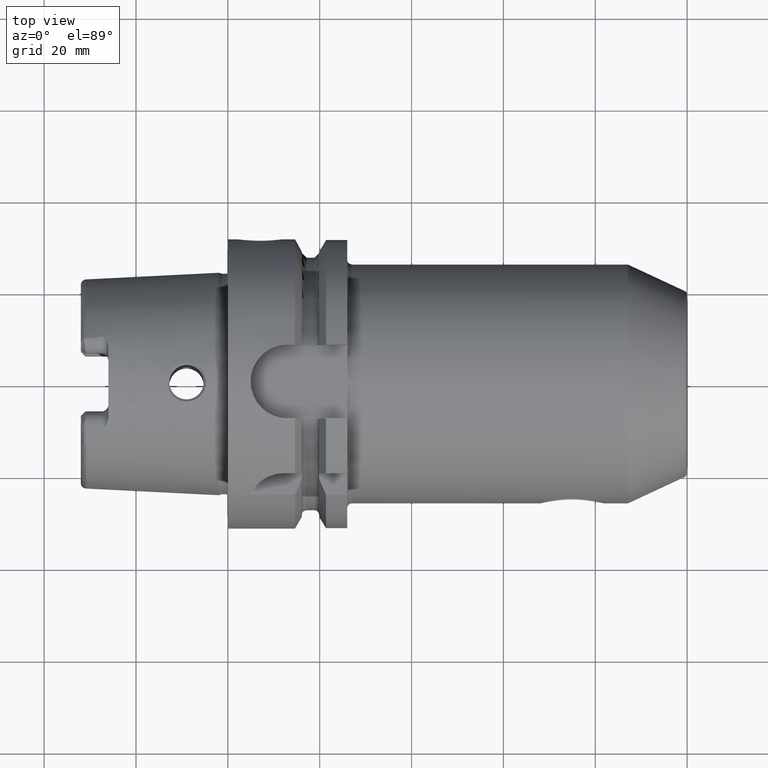
[diagram: clean part render]
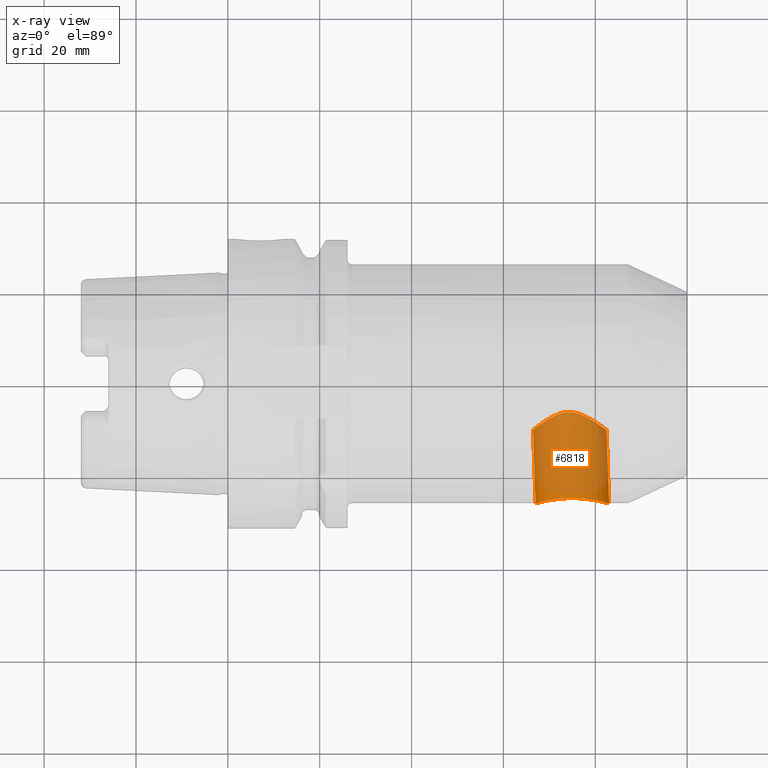
[diagram: x-ray — body ghosted, one internal face saturated and labeled with its STEP entity id]
A machine part, top view, then the same camera in x-ray: the body is ghosted and one INTERNAL B-rep face — a face not visible from any outside direction — is saturated and labeled: STEP entity #6818.
In plain terms, the highlighted cylindrical surface (partial cylindrical patch) has radius 8 mm, axis along (0.0349, -0.9994, 0).
Its self-contained STEP definition (entity closure, byte-faithful):
#6665=CARTESIAN_POINT('',(8.300487635439E1,-2.6E1,0.E0));
#6666=CARTESIAN_POINT('',(8.300487635439E1,-2.6E1,-3.134377064709E-1));
#6667=CARTESIAN_POINT('',(8.296764414114E1,-2.598863552358E1,
-9.423019589545E-1));
#6668=CARTESIAN_POINT('',(8.279793648940E1,-2.593749012091E1,
-1.880027742949E0));
#6669=CARTESIAN_POINT('',(8.251645683020E1,-2.585480115681E1,
-2.793463709941E0));
#6670=CARTESIAN_POINT('',(8.212117456865E1,-2.574328964817E1,
-3.679163770350E0));
#6671=CARTESIAN_POINT('',(8.161883396790E1,-2.560940548452E1,
-4.514872004793E0));
#6672=CARTESIAN_POINT('',(8.100841087030E1,-2.545881907690E1,
-5.295274335862E0));
#6673=CARTESIAN_POINT('',(8.030818525913E1,-2.530271173033E1,
-5.993678363555E0));
#6674=CARTESIAN_POINT('',(7.952221573891E1,-2.514920018180E1,
-6.605238645592E0));
#6675=CARTESIAN_POINT('',(7.867742002850E1,-2.501032473086E1,
-7.110309049818E0));
#6676=CARTESIAN_POINT('',(7.778075886918E1,-2.489312480985E1,
-7.508264403611E0));
#6677=CARTESIAN_POINT('',(7.685703947991E1,-2.480549548604E1,
-7.791363890342E0));
#6678=CARTESIAN_POINT('',(7.591225204729E1,-2.475102776232E1,
-7.961824356497E0));
#6679=CARTESIAN_POINT('',(7.496221594822E1,-2.473256927013E1,
-8.018678170743E0));
#6680=CARTESIAN_POINT('',(7.401509265536E1,-2.475050319674E1,
-7.963445899123E0));
#6681=CARTESIAN_POINT('',(7.307758712106E1,-2.480417611048E1,
-7.795528771880E0));
#6682=CARTESIAN_POINT('',(7.216547756757E1,-2.489052883294E1,
-7.516782423832E0));
#6683=CARTESIAN_POINT('',(7.128212174522E1,-2.500612375864E1,
-7.124912894907E0));
#6684=CARTESIAN_POINT('',(7.045119413346E1,-2.514327719337E1,
-6.627513781996E0));
#6685=CARTESIAN_POINT('',(6.967712741170E1,-2.529551487678E1,
-6.023708131314E0));
#6686=CARTESIAN_POINT('',(6.898574595205E1,-2.545118778159E1,
-5.331594061869E0));
#6687=CARTESIAN_POINT('',(6.838073022789E1,-2.560236649778E1,
-4.554555210067E0));
#6688=CARTESIAN_POINT('',(6.788052034071E1,-2.573777291089E1,
-3.717809129443E0));
#6689=CARTESIAN_POINT('',(6.748550310377E1,-2.585122211764E1,
-2.827179177778E0));
#6690=CARTESIAN_POINT('',(6.720314908823E1,-2.593582104698E1,
-1.904637370905E0));
#6691=CARTESIAN_POINT('',(6.703264210984E1,-2.598829784558E1,
-9.556332076955E-1));
#6692=CARTESIAN_POINT('',(6.699512364561E1,-2.6E1,-3.180236777833E-1));
#6693=CARTESIAN_POINT('',(6.699512364561E1,-2.6E1,0.E0));
#6695=CARTESIAN_POINT('',(6.643639133374E1,-1.E1,0.E0));
#6696=CARTESIAN_POINT('',(6.643639133374E1,-1.E1,-2.752287327221E-1));
#6697=CARTESIAN_POINT('',(6.646401824554E1,-9.977253671007E0,
-8.286926867121E-1));
#6698=CARTESIAN_POINT('',(6.659087237065E1,-9.873233086684E0,
-1.658944827606E0));
#6699=CARTESIAN_POINT('',(6.680379057218E1,-9.700080122321E0,
-2.479350452705E0));
#6700=CARTESIAN_POINT('',(6.711168455170E1,-9.453064865506E0,
-3.299682017084E0));
#6701=CARTESIAN_POINT('',(6.752017883901E1,-9.131993152758E0,
-4.106247819993E0));
#6702=CARTESIAN_POINT('',(6.803820421740E1,-8.736896732273E0,
-4.891331169966E0));
#6703=CARTESIAN_POINT('',(6.866875168321E1,-8.276877212185E0,
-5.633740663763E0));
#6704=CARTESIAN_POINT('',(6.939474417801E1,-7.780881277089E0,
-6.298043147725E0));
#6705=CARTESIAN_POINT('',(7.017772888824E1,-7.294695348657E0,
-6.851239685337E0));
#6706=CARTESIAN_POINT('',(7.097855787265E1,-6.859929756929E0,
-7.282889822434E0));
#6707=CARTESIAN_POINT('',(7.177929364374E1,-6.501065230181E0,
-7.602005964464E0));
#6708=CARTESIAN_POINT('',(7.254031270283E1,-6.241467068323E0,
-7.814553378676E0));
#6709=CARTESIAN_POINT('',(7.326607188242E1,-6.075416299188E0,
-7.943327088317E0));
#6710=CARTESIAN_POINT('',(7.396398302940E1,-5.996393354974E0,
-8.002715775184E0));
#6711=CARTESIAN_POINT('',(7.464714985305E1,-5.996827828570E0,
-8.002392192309E0));
#6712=CARTESIAN_POINT('',(7.535313104383E1,-6.077075189348E0,
-7.942070377625E0));
#6713=CARTESIAN_POINT('',(7.609924770553E1,-6.246506137083E0,
-7.810604118129E0));
#6714=CARTESIAN_POINT('',(7.689593472439E1,-6.514793197489E0,
-7.590527447589E0));
#6715=CARTESIAN_POINT('',(7.774195682128E1,-6.887169383039E0,
-7.257679457003E0));
#6716=CARTESIAN_POINT('',(7.858771439637E1,-7.335008380637E0,
-6.808766552114E0));
#6717=CARTESIAN_POINT('',(7.941031923212E1,-7.829548290647E0,
-6.238110869031E0));
#6718=CARTESIAN_POINT('',(8.016681337231E1,-8.326608188068E0,
-5.560331708560E0));
#6719=CARTESIAN_POINT('',(8.081740320529E1,-8.780615797443E0,
-4.812203287778E0));
#6720=CARTESIAN_POINT('',(8.134719804757E1,-9.165544395237E0,
-4.030102825582E0));
#6721=CARTESIAN_POINT('',(8.176312536317E1,-9.476074226049E0,
-3.231780313258E0));
#6722=CARTESIAN_POINT('',(8.207495745143E1,-9.713239977296E0,
-2.425285581387E0));
#6723=CARTESIAN_POINT('',(8.229014972152E1,-9.878918006191E0,
-1.621606123800E0));
#6724=CARTESIAN_POINT('',(8.241824011283E1,-9.978275895135E0,
-8.098587940310E-1));
#6725=CARTESIAN_POINT('',(8.244614404252E1,-1.E1,-2.689506536939E-1));
#6726=CARTESIAN_POINT('',(8.244614404252E1,-1.E1,0.E0));
#6758=DIRECTION('',(-3.489949670250E-2,9.993908270191E-1,0.E0));
#6759=VECTOR('',#6758,1.600975270878E1);
#6760=CARTESIAN_POINT('',(8.300487635439E1,-2.6E1,0.E0));
#6761=LINE('',#6760,#6759);
#6795=DIRECTION('',(-3.489949670250E-2,9.993908270191E-1,0.E0));
#6796=VECTOR('',#6795,1.600975270878E1);
#6797=CARTESIAN_POINT('',(6.699512364561E1,-2.6E1,0.E0));
#6798=LINE('',#6797,#6796);
#6799=VERTEX_POINT('',#6693);
#6800=VERTEX_POINT('',#6665);
#6801=VERTEX_POINT('',#6726);
#6802=VERTEX_POINT('',#6695);
#6803=CARTESIAN_POINT('',(7.389137122622E1,5.746974362625E0,0.E0));
#6804=DIRECTION('',(3.489949670250E-2,-9.993908270191E-1,0.E0));
#6805=DIRECTION('',(-9.993908270191E-1,-3.489949670250E-2,0.E0));
#6806=AXIS2_PLACEMENT_3D('',#6803,#6804,#6805);
#6807=CYLINDRICAL_SURFACE('',#6806,8.E0);
#6809=ORIENTED_EDGE('',*,*,#6808,.T.);
#6811=ORIENTED_EDGE('',*,*,#6810,.T.);
#6813=ORIENTED_EDGE('',*,*,#6812,.T.);
#6815=ORIENTED_EDGE('',*,*,#6814,.F.);
#6816=EDGE_LOOP('',(#6809,#6811,#6813,#6815));
#6817=FACE_OUTER_BOUND('',#6816,.F.);
#6818=ADVANCED_FACE('',(#6817),#6807,.F.);
#6694=B_SPLINE_CURVE_WITH_KNOTS('',3,(#6665,#6666,#6667,#6668,#6669,#6670,#6671,
#6672,#6673,#6674,#6675,#6676,#6677,#6678,#6679,#6680,#6681,#6682,#6683,#6684,
#6685,#6686,#6687,#6688,#6689,#6690,#6691,#6692,#6693),.UNSPECIFIED.,.F.,.F.,(4,
1,1,1,1,1,1,1,1,1,1,1,1,1,1,1,1,1,1,1,1,1,1,1,1,1,4),(0.E0,3.846153846154E-2,
7.692307692308E-2,1.153846153846E-1,1.538461538462E-1,1.923076923077E-1,
2.307692307692E-1,2.692307692308E-1,3.076923076923E-1,3.461538461538E-1,
3.846153846154E-1,4.230769230769E-1,4.615384615385E-1,5.E-1,5.384615384615E-1,
5.769230769231E-1,6.153846153846E-1,6.538461538462E-1,6.923076923077E-1,
7.307692307692E-1,7.692307692308E-1,8.076923076923E-1,8.461538461538E-1,
8.846153846154E-1,9.230769230769E-1,9.615384615385E-1,1.E0),.UNSPECIFIED.);
#6727=B_SPLINE_CURVE_WITH_KNOTS('',3,(#6695,#6696,#6697,#6698,#6699,#6700,#6701,
#6702,#6703,#6704,#6705,#6706,#6707,#6708,#6709,#6710,#6711,#6712,#6713,#6714,
#6715,#6716,#6717,#6718,#6719,#6720,#6721,#6722,#6723,#6724,#6725,#6726),
.UNSPECIFIED.,.F.,.F.,(4,1,1,1,1,1,1,1,1,1,1,1,1,1,1,1,1,1,1,1,1,1,1,1,1,1,1,1,
1,4),(0.E0,3.448275862069E-2,6.896551724138E-2,1.034482758621E-1,
1.379310344828E-1,1.724137931034E-1,2.068965517241E-1,2.413793103448E-1,
2.758620689655E-1,3.103448275862E-1,3.448275862069E-1,3.793103448276E-1,
4.137931034483E-1,4.482758620690E-1,4.827586206897E-1,5.172413793103E-1,
5.517241379310E-1,5.862068965517E-1,6.206896551724E-1,6.551724137931E-1,
6.896551724138E-1,7.241379310345E-1,7.586206896552E-1,7.931034482759E-1,
8.275862068966E-1,8.620689655172E-1,8.965517241379E-1,9.310344827586E-1,
9.655172413793E-1,1.E0),.UNSPECIFIED.);
#6808=EDGE_CURVE('',#6800,#6799,#6694,.T.);
#6810=EDGE_CURVE('',#6799,#6802,#6798,.T.);
#6812=EDGE_CURVE('',#6802,#6801,#6727,.T.);
#6814=EDGE_CURVE('',#6800,#6801,#6761,.T.);